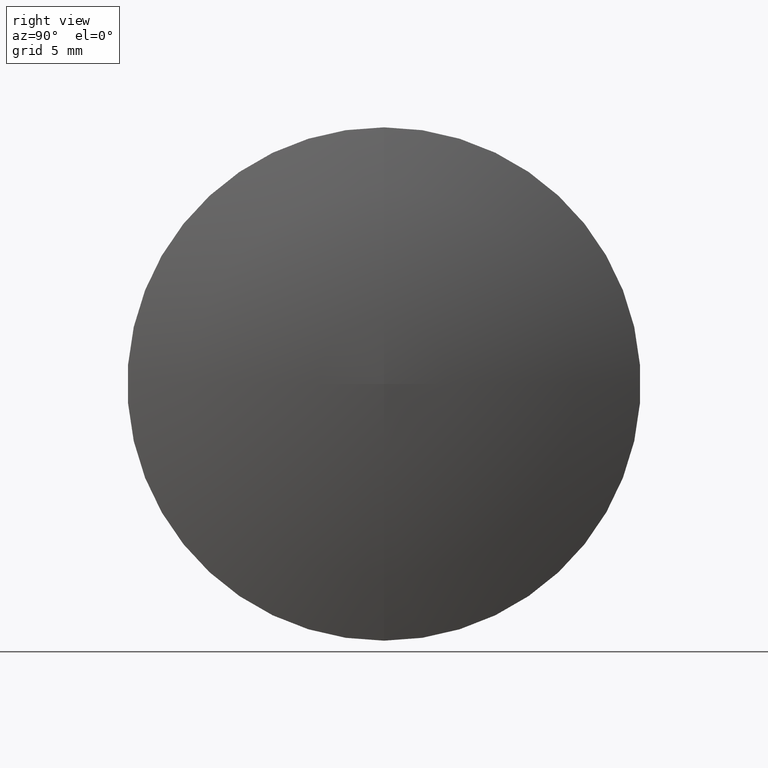
[diagram: clean part render]
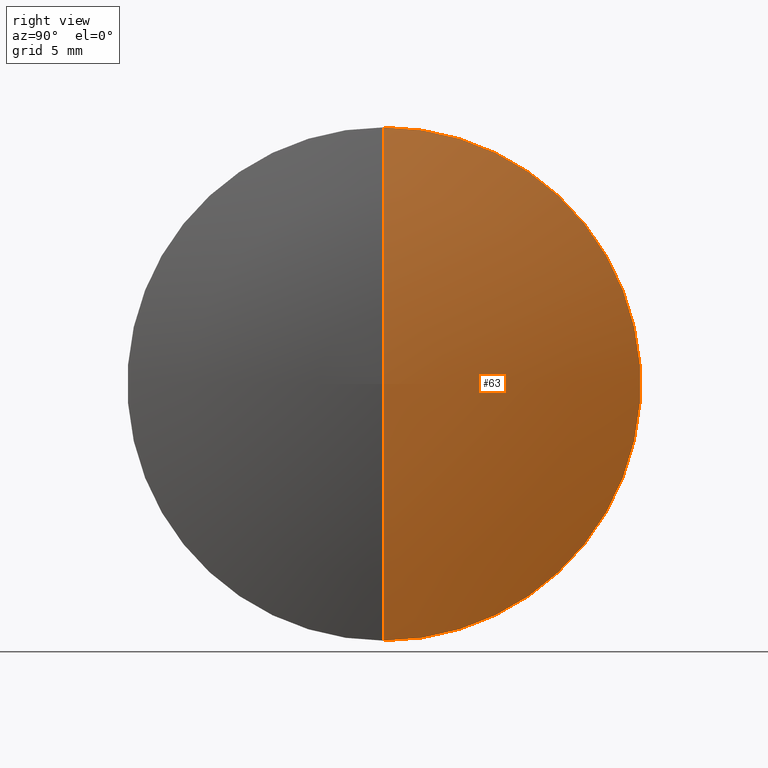
[diagram: same view with one face highlighted and labeled with its STEP entity id]
A machine part, right view. The second image highlights one B-rep face of the part: STEP entity #63.
In plain terms, the highlighted toroidal blend (fillet) surface has major radius 0.067 mm and minor (blend) radius 45.9 mm.
Its self-contained STEP definition (entity closure, byte-faithful):
#4 = DIRECTION ( 'NONE',  ( 0.0000000000000000000, 0.0000000000000000000, 1.000000000000000000 ) ) ;
#7 = CARTESIAN_POINT ( 'NONE',  ( 118.7543184979534900, 65.23355492641219700, 12.69999999999998300 ) ) ;
#12 = CIRCLE ( 'NONE', #137, 45.89999999999998400 ) ;
#14 = TOROIDAL_SURFACE ( 'NONE', #106, -0.06696785705188890200, 45.89999999999998400 ) ;
#21 = ORIENTED_EDGE ( 'NONE', *, *, #30, .F. ) ;
#30 = EDGE_CURVE ( 'NONE', #165, #112, #66, .T. ) ;
#40 = DIRECTION ( 'NONE',  ( 0.0000000000000000000, 0.0000000000000000000, -1.000000000000000000 ) ) ;
#43 = DIRECTION ( 'NONE',  ( -0.0000000000000000000, 1.000000000000000000, 1.224646799147353200E-016 ) ) ;
#57 = DIRECTION ( 'NONE',  ( 0.0000000000000000000, 0.0000000000000000000, 1.000000000000000000 ) ) ;
#59 = CARTESIAN_POINT ( 'NONE',  ( 74.66560643083813900, 65.23355492641219700, -0.06696785705188890200 ) ) ;
#61 = ORIENTED_EDGE ( 'NONE', *, *, #95, .T. ) ;
#63 = ADVANCED_FACE ( 'NONE', ( #143 ), #14, .T. ) ;
#66 = CIRCLE ( 'NONE', #99, 45.89999999999998400 ) ;
#69 = AXIS2_PLACEMENT_3D ( 'NONE', #138, #150, #4 ) ;
#70 = CARTESIAN_POINT ( 'NONE',  ( 74.66560643083813900, 65.23355492641219700, 0.0000000000000000000 ) ) ;
#71 = DIRECTION ( 'NONE',  ( 0.0000000000000000000, 0.0000000000000000000, 1.000000000000000000 ) ) ;
#85 = VERTEX_POINT ( 'NONE', #121 ) ;
#95 = EDGE_CURVE ( 'NONE', #165, #85, #12, .T. ) ;
#99 = AXIS2_PLACEMENT_3D ( 'NONE', #59, #148, #40 ) ;
#103 = CIRCLE ( 'NONE', #69, 12.70000000000000300 ) ;
#106 = AXIS2_PLACEMENT_3D ( 'NONE', #70, #161, #57 ) ;
#112 = VERTEX_POINT ( 'NONE', #7 ) ;
#121 = CARTESIAN_POINT ( 'NONE',  ( 118.7543184979534900, 65.23355492641219700, -12.69999999999998300 ) ) ;
#125 = CARTESIAN_POINT ( 'NONE',  ( 120.5655575779376200, 65.23355492641219700, 0.0000000000000000000 ) ) ;
#126 = CARTESIAN_POINT ( 'NONE',  ( 74.66560643083813900, 65.23355492641219700, 0.06696785705188890200 ) ) ;
#137 = AXIS2_PLACEMENT_3D ( 'NONE', #126, #43, #71 ) ;
#138 = CARTESIAN_POINT ( 'NONE',  ( 118.7543184979534900, 65.23355492641219700, 0.0000000000000000000 ) ) ;
#143 = FACE_OUTER_BOUND ( 'NONE', #154, .T. ) ;
#145 = ORIENTED_EDGE ( 'NONE', *, *, #166, .F. ) ;
#148 = DIRECTION ( 'NONE',  ( 0.0000000000000000000, -1.000000000000000000, 0.0000000000000000000 ) ) ;
#150 = DIRECTION ( 'NONE',  ( -1.000000000000000000, -0.0000000000000000000, -0.0000000000000000000 ) ) ;
#154 = EDGE_LOOP ( 'NONE', ( #21, #61, #145 ) ) ;
#161 = DIRECTION ( 'NONE',  ( -1.000000000000000000, -0.0000000000000000000, -0.0000000000000000000 ) ) ;
#165 = VERTEX_POINT ( 'NONE', #125 ) ;
#166 = EDGE_CURVE ( 'NONE', #112, #85, #103, .T. ) ;